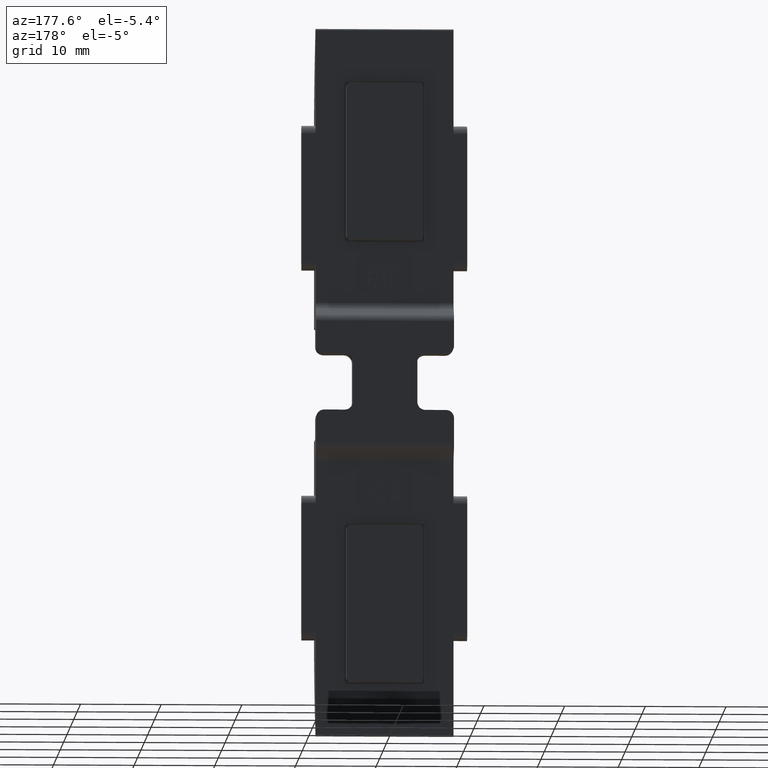
[diagram: clean part render]
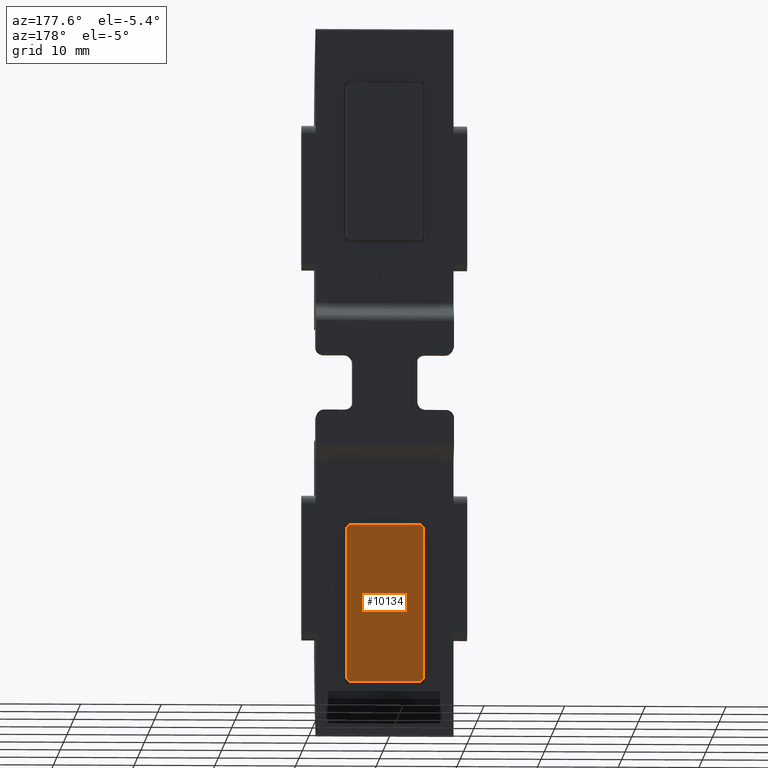
[diagram: same view with one face highlighted and labeled with its STEP entity id]
A machine part, auxiliary view. The second image highlights one B-rep face of the part: STEP entity #10134.
In plain terms, the highlighted planar face has unit normal (0, 1, 0).
Its self-contained STEP definition (entity closure, byte-faithful):
#383 = VERTEX_POINT ( 'NONE', #10834 ) ;
#551 = CARTESIAN_POINT ( 'NONE',  ( 4.749999999999998200, 1.000000000000000000, -9.750000000000001800 ) ) ;
#552 = PLANE ( 'NONE',  #5802 ) ;
#578 = VECTOR ( 'NONE', #6056, 1000.000000000000000 ) ;
#638 = CARTESIAN_POINT ( 'NONE',  ( -4.749999999999998200, 1.000000000000000000, 9.749999999999998200 ) ) ;
#724 = CARTESIAN_POINT ( 'NONE',  ( 4.249999999999999100, 1.000000000000000000, -9.250000000000001800 ) ) ;
#804 = DIRECTION ( 'NONE',  ( 0.0000000000000000000, 1.000000000000000000, 0.0000000000000000000 ) ) ;
#981 = ORIENTED_EDGE ( 'NONE', *, *, #6932, .T. ) ;
#1009 = DIRECTION ( 'NONE',  ( 0.0000000000000000000, 1.000000000000000000, 0.0000000000000000000 ) ) ;
#1847 = CARTESIAN_POINT ( 'NONE',  ( -4.250000000000001800, 1.000000000000000000, -9.750000000000001800 ) ) ;
#1904 = LINE ( 'NONE', #9824, #578 ) ;
#2079 = CARTESIAN_POINT ( 'NONE',  ( -4.249999999999998200, 1.000000000000000000, 9.749999999999998200 ) ) ;
#2396 = CIRCLE ( 'NONE', #9654, 0.5000000000000004400 ) ;
#2459 = AXIS2_PLACEMENT_3D ( 'NONE', #9132, #5343, #9220 ) ;
#2484 = CARTESIAN_POINT ( 'NONE',  ( 0.0000000000000000000, 1.000000000000000000, 0.0000000000000000000 ) ) ;
#2661 = VERTEX_POINT ( 'NONE', #5186 ) ;
#2686 = AXIS2_PLACEMENT_3D ( 'NONE', #724, #804, #10341 ) ;
#3040 = LINE ( 'NONE', #7910, #3632 ) ;
#3524 = EDGE_CURVE ( 'NONE', #7598, #5028, #2396, .T. ) ;
#3616 = DIRECTION ( 'NONE',  ( 1.000000000000000000, 0.0000000000000000000, 0.0000000000000000000 ) ) ;
#3632 = VECTOR ( 'NONE', #7964, 1000.000000000000000 ) ;
#3850 = EDGE_CURVE ( 'NONE', #5028, #6507, #11253, .T. ) ;
#4189 = ORIENTED_EDGE ( 'NONE', *, *, #3524, .T. ) ;
#4366 = ORIENTED_EDGE ( 'NONE', *, *, #3850, .T. ) ;
#4384 = AXIS2_PLACEMENT_3D ( 'NONE', #4821, #12304, #4660 ) ;
#4660 = DIRECTION ( 'NONE',  ( 0.0000000000000000000, 0.0000000000000000000, 1.000000000000000000 ) ) ;
#4798 = EDGE_CURVE ( 'NONE', #11938, #7598, #7788, .T. ) ;
#4821 = CARTESIAN_POINT ( 'NONE',  ( -4.250000000000001800, 1.000000000000000000, -9.250000000000001800 ) ) ;
#5028 = VERTEX_POINT ( 'NONE', #11665 ) ;
#5186 = CARTESIAN_POINT ( 'NONE',  ( -4.749999999999998200, 1.000000000000000000, 9.249999999999998200 ) ) ;
#5343 = DIRECTION ( 'NONE',  ( 0.0000000000000000000, 1.000000000000000000, 0.0000000000000000000 ) ) ;
#5628 = CIRCLE ( 'NONE', #2686, 0.5000000000000004400 ) ;
#5802 = AXIS2_PLACEMENT_3D ( 'NONE', #2484, #7117, #9046 ) ;
#5951 = VERTEX_POINT ( 'NONE', #1847 ) ;
#6056 = DIRECTION ( 'NONE',  ( -1.000000000000000000, -0.0000000000000000000, -0.0000000000000000000 ) ) ;
#6313 = ORIENTED_EDGE ( 'NONE', *, *, #6654, .T. ) ;
#6507 = VERTEX_POINT ( 'NONE', #12217 ) ;
#6654 = EDGE_CURVE ( 'NONE', #2661, #11938, #7221, .T. ) ;
#6932 = EDGE_CURVE ( 'NONE', #5951, #9280, #8395, .T. ) ;
#7117 = DIRECTION ( 'NONE',  ( 0.0000000000000000000, 1.000000000000000000, 0.0000000000000000000 ) ) ;
#7129 = EDGE_CURVE ( 'NONE', #9280, #2661, #3040, .T. ) ;
#7221 = CIRCLE ( 'NONE', #2459, 0.5000000000000004400 ) ;
#7582 = ORIENTED_EDGE ( 'NONE', *, *, #11283, .T. ) ;
#7598 = VERTEX_POINT ( 'NONE', #11599 ) ;
#7788 = LINE ( 'NONE', #638, #12127 ) ;
#7910 = CARTESIAN_POINT ( 'NONE',  ( -4.750000000000001800, 1.000000000000000000, -9.750000000000001800 ) ) ;
#7964 = DIRECTION ( 'NONE',  ( 1.779203565104417600E-016, 0.0000000000000000000, 1.000000000000000000 ) ) ;
#8395 = CIRCLE ( 'NONE', #4384, 0.5000000000000004400 ) ;
#8719 = VECTOR ( 'NONE', #11153, 1000.000000000000000 ) ;
#9046 = DIRECTION ( 'NONE',  ( 0.0000000000000000000, -0.0000000000000000000, 1.000000000000000000 ) ) ;
#9132 = CARTESIAN_POINT ( 'NONE',  ( -4.249999999999998200, 1.000000000000000000, 9.249999999999998200 ) ) ;
#9220 = DIRECTION ( 'NONE',  ( 0.0000000000000000000, 0.0000000000000000000, 1.000000000000000000 ) ) ;
#9280 = VERTEX_POINT ( 'NONE', #11917 ) ;
#9593 = DIRECTION ( 'NONE',  ( 0.0000000000000000000, 0.0000000000000000000, 1.000000000000000000 ) ) ;
#9654 = AXIS2_PLACEMENT_3D ( 'NONE', #10589, #1009, #9593 ) ;
#9824 = CARTESIAN_POINT ( 'NONE',  ( -4.750000000000001800, 1.000000000000000000, -9.750000000000001800 ) ) ;
#10134 = ADVANCED_FACE ( 'NONE', ( #12007 ), #552, .T. ) ;
#10190 = ORIENTED_EDGE ( 'NONE', *, *, #12261, .T. ) ;
#10341 = DIRECTION ( 'NONE',  ( 0.0000000000000000000, 0.0000000000000000000, 1.000000000000000000 ) ) ;
#10345 = ORIENTED_EDGE ( 'NONE', *, *, #7129, .T. ) ;
#10589 = CARTESIAN_POINT ( 'NONE',  ( 4.250000000000000900, 1.000000000000000000, 9.249999999999998200 ) ) ;
#10785 = ORIENTED_EDGE ( 'NONE', *, *, #4798, .T. ) ;
#10834 = CARTESIAN_POINT ( 'NONE',  ( 4.249999999999999100, 1.000000000000000000, -9.750000000000001800 ) ) ;
#11072 = EDGE_LOOP ( 'NONE', ( #10345, #6313, #10785, #4189, #4366, #10190, #7582, #981 ) ) ;
#11153 = DIRECTION ( 'NONE',  ( -1.334402673828313300E-016, -0.0000000000000000000, -1.000000000000000000 ) ) ;
#11253 = LINE ( 'NONE', #551, #8719 ) ;
#11283 = EDGE_CURVE ( 'NONE', #383, #5951, #1904, .T. ) ;
#11599 = CARTESIAN_POINT ( 'NONE',  ( 4.250000000000000900, 1.000000000000000000, 9.749999999999998200 ) ) ;
#11665 = CARTESIAN_POINT ( 'NONE',  ( 4.750000000000000900, 1.000000000000000000, 9.249999999999998200 ) ) ;
#11917 = CARTESIAN_POINT ( 'NONE',  ( -4.750000000000001800, 1.000000000000000000, -9.250000000000001800 ) ) ;
#11938 = VERTEX_POINT ( 'NONE', #2079 ) ;
#12007 = FACE_OUTER_BOUND ( 'NONE', #11072, .T. ) ;
#12127 = VECTOR ( 'NONE', #3616, 1000.000000000000000 ) ;
#12217 = CARTESIAN_POINT ( 'NONE',  ( 4.749999999999998200, 1.000000000000000000, -9.250000000000001800 ) ) ;
#12261 = EDGE_CURVE ( 'NONE', #6507, #383, #5628, .T. ) ;
#12304 = DIRECTION ( 'NONE',  ( 0.0000000000000000000, 1.000000000000000000, 0.0000000000000000000 ) ) ;